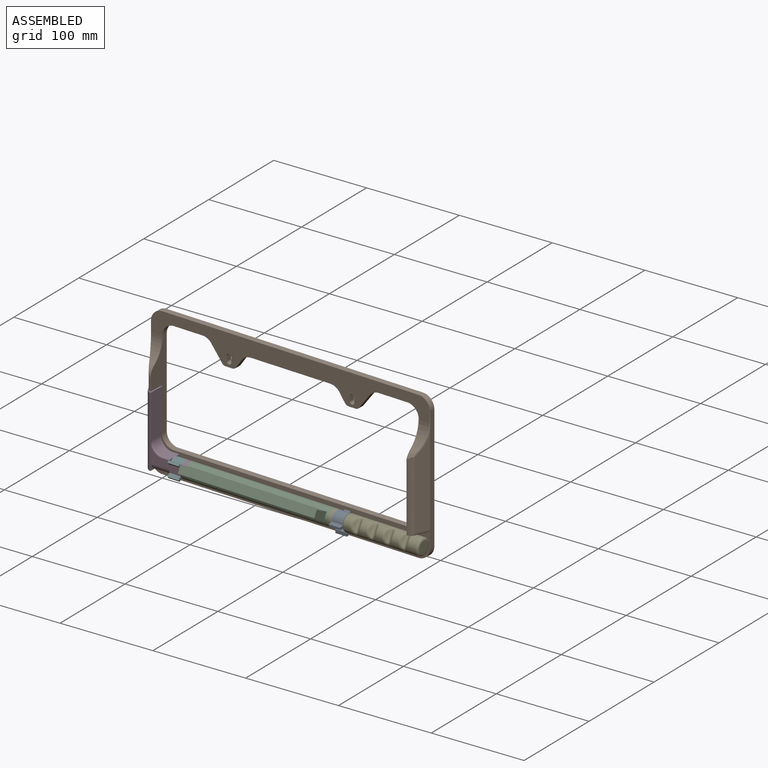
[diagram: assembled view]
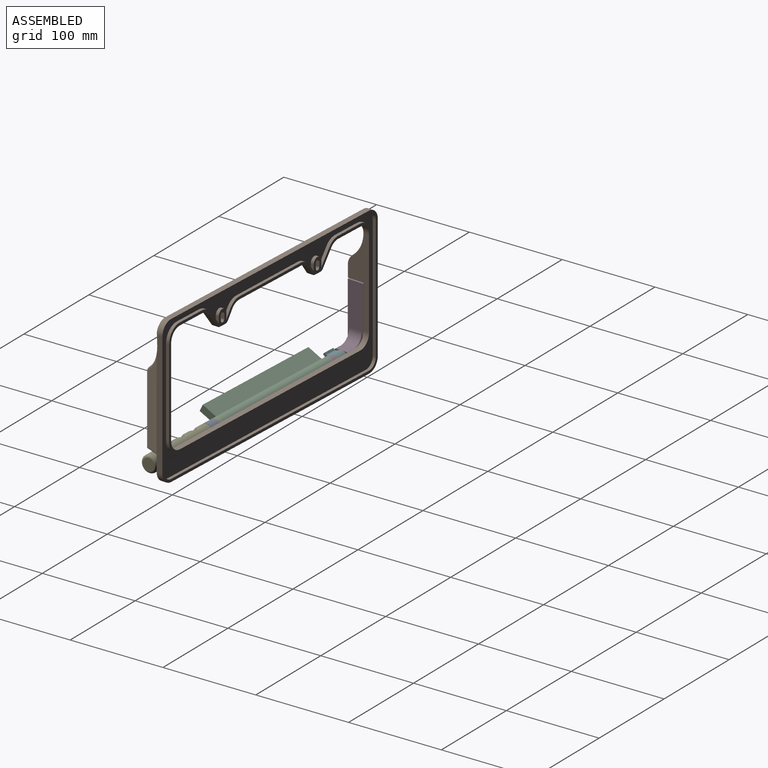
[diagram: assembled view, second angle]
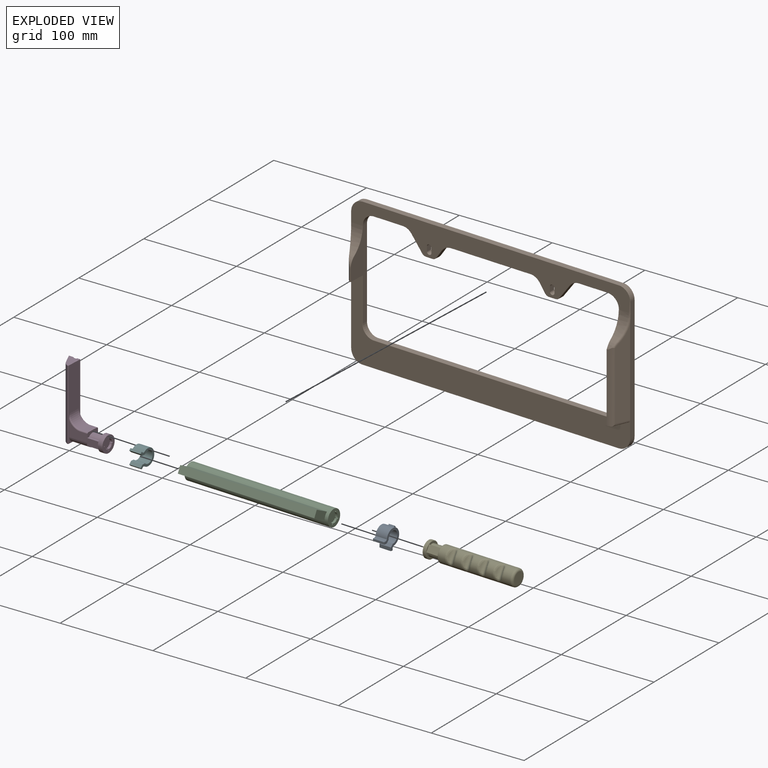
[diagram: exploded view]
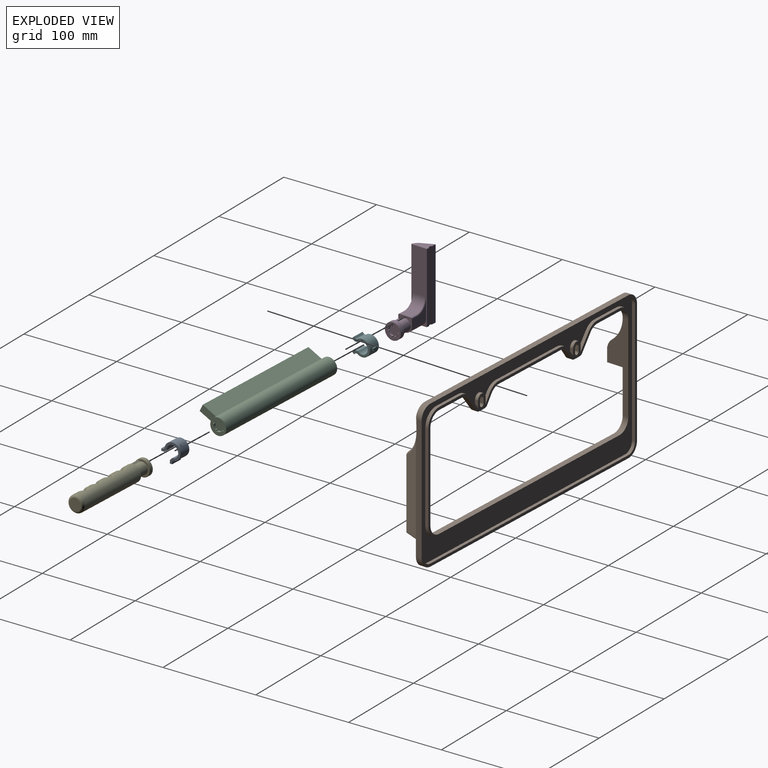
[diagram: exploded view, second angle]
ASSEMBLY  parts=6 mates=8
PART A: 27 faces, bbox 21.1x12.7x17.8 mm
  f0: cylinder r=0.25mm len=12.7mm, axis (0,1,0), area 5mm2, adj f3,f10,f24,f26
  f1: cylinder r=8.89mm len=17.78mm, axis (0,-1,0), area 493mm2, adj f4,f6,f12,f13,f15,f16,f17,f19
  f2: cylinder r=6.35mm len=12.7mm, axis (0,-1,0), area 384.9mm2, adj f4,f6,f8,f9
  f3: plane 12.19x1.44mm, normal (-0.71,0,0.71), area 24.8mm2, adj f0,f24,f25,f26
  f4: plane 19.68x17.78mm, normal (0,1,0), area 117.8mm2, adj f1,f2,f7,f8,f9,f10,f11,f12
  f5: plane 12.19x1.44mm, normal (-0.71,0,-0.71), area 24.8mm2, adj f20,f21,f22,f23
  f6: plane 19.68x17.78mm, normal (0,-1,0), area 117.8mm2, adj f1,f2,f7,f8,f9,f10,f11,f12
  f7: plane 12.7x2.36mm, normal (-0.71,0,0.71), area 42.4mm2, adj f4,f6,f8,f22
  f8: plane 12.7x3.81mm, normal (0,0,1), area 48.4mm2, adj f2,f4,f6,f7
  f9: plane 12.7x3.81mm, normal (0,0,-1), area 48.4mm2, adj f2,f4,f6,f10
  f10: plane 12.7x2.36mm, normal (-0.71,0,-0.71), area 42.4mm2, adj f0,f4,f6,f9
  f11: plane 12.7x1.62mm, normal (0.71,0,-0.71), area 29mm2, adj f4,f6,f12,f21
  f12: plane 12.7x1.77mm, normal (0,0,-1), area 22.4mm2, adj f1,f4,f6,f11
  f13: plane 12.7x1.77mm, normal (0,0,1), area 22.4mm2, adj f1,f4,f6,f14
  f14: plane 12.7x1.62mm, normal (0.71,0,0.71), area 29mm2, adj f4,f6,f13,f25
  f15: plane 6.28x1.36mm, normal (0,0,-1), area 8.6mm2, adj f1,f16,f17,f18
  f16: plane 2.54x1.36mm, normal (0,-1,0), area 3.3mm2, adj f1,f15,f18,f19
  f17: plane 2.54x1.36mm, normal (0,1,0), area 3.3mm2, adj f1,f15,f18,f19
  f18: plane 6.28x2.54mm, normal (1,0,0), area 16mm2, adj f15,f16,f17,f19
  f19: plane 6.28x1.36mm, normal (0,0,1), area 8.6mm2, adj f1,f16,f17,f18
  f20: cylinder r=0.25mm len=1.98mm, axis (-0.71,0,0.71), area 0.9mm2, adj f4,f5,f21,f22
  f21: cylinder r=0.25mm len=12.7mm, axis (0,1,0), area 5mm2, adj f5,f11,f20,f23
  f22: cylinder r=0.25mm len=12.7mm, axis (0,-1,0), area 5mm2, adj f5,f7,f20,f23
  f23: cylinder r=0.25mm len=1.98mm, axis (0.71,0,-0.71), area 0.9mm2, adj f5,f6,f21,f22
  f24: cylinder r=0.25mm len=1.98mm, axis (0.71,0,0.71), area 0.9mm2, adj f0,f3,f4,f25
  f25: cylinder r=0.25mm len=12.7mm, axis (0,-1,0), area 5mm2, adj f3,f14,f24,f26
  f26: cylinder r=0.25mm len=1.98mm, axis (-0.71,0,-0.71), area 0.9mm2, adj f0,f3,f6,f25
PART B: 134 faces, bbox 313.4x25.8x160.3 mm
  f0: cylinder r=0.51mm len=74.27mm, axis (0,0,1), area 15.5mm2, adj f3,f126,f127,f129
  f1: cylinder r=0.51mm len=14.62mm, axis (0,0,1), area 14.1mm2, adj f17,f89,f91,f94,f124
  f2: plane 93.75x14.51mm, normal (0.93,-0.36,0), area 1274.1mm2, adj f9,f130,f131,f132,f133
  f3: plane 106.68x17.53mm, normal (-1,0,0), area 1506.6mm2, adj f0,f4,f125,f127,f128,f129
  f4: plane 311.64x87.36mm, normal (0,-1,0), area 9143.9mm2, adj f3,f8,f9,f13,f14,f15,f91,f117
  f5: plane 291.59x126.49mm, normal (0,1,0), area 2602.4mm2, adj f16,f17,f18,f19,f20,f21,f22,f23
  f6: plane 311.6x34.05mm, normal (0,-1,0), area 5482mm2, adj f10,f11,f12,f13,f40,f41,f42,f43
  f7: plane 311.15x158.75mm, normal (0,1,0), area 2654.7mm2, adj f8,f9,f10,f11,f12,f13,f14,f15
  f8: cylinder r=12.7mm len=12.7mm, axis (0,1,0), area 126.7mm2, adj f4,f7,f9,f15
  f9: plane 134.9x7.9mm, normal (1,0,0), area 837.3mm2, adj f2,f4,f7,f8,f10,f130
  f10: cylinder r=12.7mm len=12.7mm, axis (0,1,0), area 126.2mm2, adj f6,f7,f9,f11,f130
  f11: plane 285.75x6.35mm, normal (0,0,1), area 1814.5mm2, adj f6,f7,f10,f12
  f12: cylinder r=12.7mm len=12.7mm, axis (0,1,0), area 126.7mm2, adj f6,f7,f11,f13
  f13: plane 133.35x6.35mm, normal (-1,0,0), area 846.8mm2, adj f4,f6,f7,f12,f14,f90
  f14: cylinder r=12.7mm len=12.7mm, axis (0,1,0), area 126.7mm2, adj f4,f7,f13,f15
  f15: plane 285.75x6.35mm, normal (0,0,-1), area 1814.5mm2, adj f4,f7,f8,f14
  f16: cylinder r=12.7mm len=12.7mm, axis (0,1,0), area 121.6mm2, adj f5,f17,f39,f97
  f17: plane 95.25x23.37mm, normal (1,0,0), area 1059.1mm2, adj f1,f5,f16,f18,f91,f95,f96,f120
  f18: cylinder r=12.7mm len=12.7mm, axis (0,1,0), area 121.6mm2, adj f5,f17,f19,f119
  f19: plane 260.35x6.1mm, normal (0,0,1), area 1587.1mm2, adj f5,f18,f20,f118
  f20: cylinder r=12.7mm len=12.7mm, axis (0,1,0), area 121.6mm2, adj f5,f19,f21,f117
  f21: plane 95.25x6.1mm, normal (-1,0,0), area 580.6mm2, adj f5,f20,f22,f116
  f22: cylinder r=12.7mm len=12.7mm, axis (0,1,0), area 121.6mm2, adj f5,f21,f23,f115
  f23: plane 31.79x6.1mm, normal (0,0,-1), area 193.8mm2, adj f5,f22,f24,f114
  f24: cylinder r=12.7mm len=10.12mm, axis (0,1,0), area 71.4mm2, adj f5,f23,f25,f113
  f25: plane 15.61x11.83mm, normal (0.8,0,-0.6), area 119.4mm2, adj f5,f24,f26,f112
  f26: cylinder r=5.08mm len=6.1mm, axis (0,1,0), area 28.6mm2, adj f5,f25,f27,f111
  f27: plane 7.53x6.1mm, normal (0,0,-1), area 45.9mm2, adj f5,f26,f28,f110
  f28: cylinder r=5.08mm len=6.1mm, axis (0,1,0), area 29.7mm2, adj f5,f27,f29,f109
  f29: plane 8.71x6.1mm, normal (-0.82,0,-0.57), area 64.8mm2, adj f5,f28,f30,f108
  f30: cylinder r=12.7mm len=10.4mm, axis (0,1,0), area 74.3mm2, adj f5,f29,f31,f107
  f31: plane 88.38x6.1mm, normal (0,0,-1), area 538.7mm2, adj f5,f30,f32,f106
  f32: cylinder r=12.7mm len=10.4mm, axis (0,1,0), area 74.3mm2, adj f5,f31,f33,f105
  f33: plane 8.71x6.1mm, normal (0.82,0,-0.57), area 64.8mm2, adj f5,f32,f34,f104
  f34: cylinder r=5.08mm len=6.1mm, axis (0,1,0), area 29.7mm2, adj f5,f33,f35,f103
  f35: plane 7.53x6.1mm, normal (0,0,-1), area 45.9mm2, adj f5,f34,f36,f102
  f36: cylinder r=5.08mm len=6.1mm, axis (0,1,0), area 28.6mm2, adj f5,f35,f37,f101
  f37: plane 15.61x11.83mm, normal (-0.8,0,-0.6), area 119.4mm2, adj f5,f36,f38,f100
  f38: cylinder r=12.7mm len=10.12mm, axis (0,1,0), area 71.4mm2, adj f5,f37,f39,f99
  f39: plane 31.79x6.1mm, normal (0,0,-1), area 193.8mm2, adj f5,f16,f38,f98
  f40: cylinder r=2.56mm len=6.35mm, axis (0,1,0), area 51mm2, adj f5,f6,f41,f43
  f41: plane 6.35x5.08mm, normal (-1,0,0), area 32.3mm2, adj f5,f6,f40,f42
  f42: cylinder r=2.56mm len=6.35mm, axis (0,1,0), area 51mm2, adj f5,f6,f41,f43
  f43: plane 6.35x5.08mm, normal (1,0,0), area 32.3mm2, adj f5,f6,f40,f42
  f44: cylinder r=2.56mm len=6.35mm, axis (0,1,0), area 51mm2, adj f5,f6,f45,f47
  f45: plane 6.35x5.08mm, normal (-1,0,0), area 32.3mm2, adj f5,f6,f44,f46
  f46: cylinder r=2.56mm len=6.35mm, axis (0,1,0), area 51mm2, adj f5,f6,f45,f47
  f47: plane 6.35x5.08mm, normal (1,0,0), area 32.3mm2, adj f5,f6,f44,f46
  f48: cylinder r=5.48mm len=3.43mm, axis (0,1,0), area 7.5mm2, adj f5,f50,f77,f84
  f49: cylinder r=5.48mm len=3.43mm, axis (0,1,0), area 7.5mm2, adj f5,f50,f70,f88
  f50: plane 305.31x152.91mm, normal (0,1,0), area 11529.8mm2, adj f48,f49,f51,f52,f53,f54,f55,f56
  f51: cylinder r=9.78mm len=9.78mm, axis (0,1,0), area 52.7mm2, adj f7,f50,f52,f58
  f52: plane 133.35x3.43mm, normal (-1,0,0), area 457.3mm2, adj f7,f50,f51,f53
  f53: cylinder r=9.78mm len=9.78mm, axis (0,1,0), area 52.7mm2, adj f7,f50,f52,f54
  f54: plane 285.75x3.43mm, normal (0,0,-1), area 979.8mm2, adj f7,f50,f53,f55
  f55: cylinder r=9.78mm len=9.78mm, axis (0,1,0), area 52.7mm2, adj f7,f50,f54,f56
  f56: plane 133.35x3.43mm, normal (1,0,0), area 457.3mm2, adj f7,f50,f55,f57
  f57: cylinder r=9.78mm len=9.78mm, axis (0,1,0), area 52.7mm2, adj f7,f50,f56,f58
  f58: plane 285.75x3.43mm, normal (0,0,1), area 979.8mm2, adj f7,f50,f51,f57
  f59: cylinder r=15.62mm len=15.62mm, axis (0,1,0), area 84.1mm2, adj f5,f50,f60,f80
  f60: plane 95.25x3.43mm, normal (-1,0,0), area 326.6mm2, adj f5,f50,f59,f61
  f61: cylinder r=15.62mm len=15.62mm, axis (0,1,0), area 84.1mm2, adj f5,f50,f60,f62
  f62: plane 260.35x3.43mm, normal (0,0,-1), area 892.7mm2, adj f5,f50,f61,f63
  f63: cylinder r=15.62mm len=15.62mm, axis (0,1,0), area 84.1mm2, adj f5,f50,f62,f64
  f64: plane 95.25x3.43mm, normal (1,0,0), area 326.6mm2, adj f5,f50,f63,f65
  f65: cylinder r=15.62mm len=15.62mm, axis (0,1,0), area 84.1mm2, adj f5,f50,f64,f66
  f66: plane 31.79x3.43mm, normal (0,0,1), area 109mm2, adj f5,f50,f65,f67
  f67: cylinder r=15.62mm len=12.45mm, axis (0,1,0), area 49.4mm2, adj f5,f50,f66,f68
  f68: plane 15.61x11.83mm, normal (-0.8,0,0.6), area 67.1mm2, adj f5,f50,f67,f69
  f69: cylinder r=2.16mm len=3.43mm, axis (0,1,0), area 2.1mm2, adj f5,f50,f68,f85
  f70: cylinder r=2.16mm len=3.43mm, axis (0,1,0), area 2.4mm2, adj f5,f49,f50,f71
  f71: plane 8.71x6.1mm, normal (0.82,0,0.57), area 36.5mm2, adj f5,f50,f70,f72
  f72: cylinder r=15.62mm len=12.8mm, axis (0,1,0), area 51.4mm2, adj f5,f50,f71,f73
  f73: plane 88.38x3.43mm, normal (0,0,1), area 303mm2, adj f5,f50,f72,f74
  f74: cylinder r=15.62mm len=12.8mm, axis (0,1,0), area 51.4mm2, adj f5,f50,f73,f75
  f75: plane 8.71x6.1mm, normal (-0.82,0,0.57), area 36.5mm2, adj f5,f50,f74,f76
  f76: cylinder r=2.16mm len=3.43mm, axis (0,1,0), area 2.4mm2, adj f5,f50,f75,f81
  f77: cylinder r=2.16mm len=3.43mm, axis (0,1,0), area 2.1mm2, adj f5,f48,f50,f78
  f78: plane 15.61x11.83mm, normal (0.8,0,0.6), area 67.1mm2, adj f5,f50,f77,f79
  f79: cylinder r=15.62mm len=12.45mm, axis (0,1,0), area 49.4mm2, adj f5,f50,f78,f80
  f80: plane 31.79x3.43mm, normal (0,0,1), area 109mm2, adj f5,f50,f59,f79
  f81: cylinder r=5.48mm len=3.43mm, axis (0,1,0), area 7.5mm2, adj f5,f50,f76,f82
  f82: plane 5.08x3.43mm, normal (1,0,0), area 17.4mm2, adj f5,f50,f81,f83
  f83: cylinder r=5.48mm len=10.95mm, axis (0,1,0), area 59mm2, adj f5,f50,f82,f84
  f84: plane 5.08x3.43mm, normal (-1,0,0), area 17.4mm2, adj f5,f48,f50,f83
  f85: cylinder r=5.48mm len=3.43mm, axis (0,1,0), area 7.5mm2, adj f5,f50,f69,f86
  f86: plane 5.08x3.43mm, normal (1,0,0), area 17.4mm2, adj f5,f50,f85,f87
  f87: cylinder r=5.48mm len=10.95mm, axis (0,1,0), area 59mm2, adj f5,f50,f86,f88
  f88: plane 5.08x3.43mm, normal (-1,0,0), area 17.4mm2, adj f5,f49,f50,f87
  f89: cylinder r=12.7mm len=22.32mm, axis (0,0,1), area 107.1mm2, adj f1,f90,f91,f123
  f90: plane 45.46x13.14mm, normal (-0.86,-0.51,0), area 458.1mm2, adj f13,f89,f91,f121,f122
  f91: plane 17.78x12.7mm, normal (0,0,-1), area 129.9mm2, adj f1,f4,f17,f89,f90,f120
  f92: cylinder r=31.37mm len=24.53mm, axis (1,0,0), area 247.7mm2, adj f6,f93,f96,f121
  f93: cylinder r=15.15mm len=11.85mm, axis (1,0,0), area 35.1mm2, adj f92,f94,f95,f122,f123,f124
  f94: bspline ~2.79x0.51mm, area 0.4mm2, adj f1,f93,f95
  f95: bspline ~9.11x5.61mm, area 4.4mm2, adj f17,f93,f94,f96
  f96: bspline ~24.73x12.07mm, area 11.6mm2, adj f17,f92,f95,f97
  f97: bspline ~12.96x12.96mm, area 8.3mm2, adj f6,f16,f96,f98
  f98: extruded ~31.79x0.25mm, area 13.1mm2, adj f6,f39,f97,f99
  f99: revolved ~10.32x5.28mm, area 4.9mm2, adj f6,f38,f98,f100
  f100: extruded ~15.76x12.03mm, area 8.1mm2, adj f6,f37,f99,f101
  f101: revolved ~4.05x2.16mm, area 1.9mm2, adj f6,f36,f100,f102
  f102: extruded ~7.53x0.25mm, area 3.1mm2, adj f6,f35,f101,f103
  f103: revolved ~4.16x2.31mm, area 2mm2, adj f6,f34,f102,f104
  f104: extruded ~8.86x6.31mm, area 4.4mm2, adj f6,f33,f103,f105
  f105: revolved ~10.61x5.67mm, area 5.1mm2, adj f6,f32,f104,f106
  f106: extruded ~88.38x0.25mm, area 36.4mm2, adj f6,f31,f105,f107
  f107: revolved ~10.61x5.67mm, area 5.1mm2, adj f6,f30,f106,f108
  f108: extruded ~8.86x6.31mm, area 4.4mm2, adj f6,f29,f107,f109
  f109: revolved ~4.16x2.31mm, area 2mm2, adj f6,f28,f108,f110
  f110: extruded ~7.53x0.25mm, area 3.1mm2, adj f6,f27,f109,f111
  f111: revolved ~4.05x2.16mm, area 1.9mm2, adj f6,f26,f110,f112
  f112: extruded ~15.76x12.03mm, area 8.1mm2, adj f6,f25,f111,f113
  f113: revolved ~10.32x5.28mm, area 4.9mm2, adj f6,f24,f112,f114
  f114: extruded ~31.79x0.25mm, area 13.1mm2, adj f6,f23,f113,f115
  f115: revolved ~12.95x12.95mm, area 8.3mm2, adj f6,f22,f114,f116
  f116: extruded ~95.25x0.25mm, area 39.3mm2, adj f21,f115,f117,f125
  f117: revolved ~12.95x12.95mm, area 8.3mm2, adj f4,f20,f116,f118,f125
  f118: extruded ~260.35x0.25mm, area 107.3mm2, adj f4,f19,f117,f119
  f119: revolved ~12.95x12.95mm, area 8.3mm2, adj f4,f18,f118,f120
  f120: extruded ~46.99x0.25mm, area 19.4mm2, adj f4,f17,f91,f119
  f121: bspline ~24.73x11.97mm, area 8mm2, adj f6,f90,f92,f122
  f122: bspline ~1.44x1.41mm, area 0.6mm2, adj f90,f93,f121,f123
  f123: bspline ~9.54x4.35mm, area 2.5mm2, adj f89,f93,f122,f124
  f124: bspline ~1.09x0.27mm, area 0.1mm2, adj f1,f93,f123
  f125: plane 97.8x0.25mm, normal (0,1,0), area 24.6mm2, adj f3,f116,f117,f128
  f126: cylinder r=12.7mm len=76.96mm, axis (0,0,1), area 462mm2, adj f0,f127,f129,f131,f132,f133
  f127: plane 17.54x9.97mm, normal (0,0,-1), area 114.3mm2, adj f0,f3,f4,f126,f133
  f128: cylinder r=31.84mm len=24.73mm, axis (-1,0,0), area 262.4mm2, adj f3,f6,f125,f129,f130
  f129: cylinder r=19.52mm len=7.71mm, axis (-1,0,0), area 44.4mm2, adj f0,f3,f126,f128,f131
  f130: bspline ~40.83x13.86mm, area 111.6mm2, adj f2,f6,f9,f10,f128,f131
  f131: bspline ~6.91x5.46mm, area 20.7mm2, adj f2,f126,f129,f130,f132
  f132: extruded ~76.21x1.26mm, area 125.5mm2, adj f2,f126,f131,f133
  f133: extruded ~18.77x9.32mm, area 69.3mm2, adj f2,f4,f126,f127,f132
PART C: 46 faces, bbox 17.8x162.6x33.3 mm
  f0: cylinder r=8.89mm len=160.02mm, axis (0,1,0), area 7695.2mm2, adj f1,f36,f37,f38,f39,f40
  f1: plane 17.78x17.78mm, normal (0,-1,0), area 160.8mm2, adj f0,f2,f3,f4,f5,f6,f7,f8
  f2: cylinder r=5.08mm len=4.59mm, axis (0,-1,0), area 17mm2, adj f1,f3,f17,f18
  f3: plane 2.54x1.32mm, normal (0,0,-1), area 3.4mm2, adj f1,f2,f4,f18
  f4: plane 2.54x1.27mm, normal (-1,0,0), area 3.2mm2, adj f1,f3,f5,f18
  f5: plane 2.54x1.27mm, normal (0,0,1), area 3.2mm2, adj f1,f4,f6,f18
  f6: cylinder r=5.08mm len=4.59mm, axis (0,-1,0), area 17mm2, adj f1,f5,f7,f18
  f7: plane 2.54x1.32mm, normal (-1,0,0), area 3.4mm2, adj f1,f6,f8,f18
  f8: plane 2.54x1.27mm, normal (0,0,1), area 3.2mm2, adj f1,f7,f9,f18
  f9: plane 2.54x1.27mm, normal (1,0,0), area 3.2mm2, adj f1,f8,f10,f18
  f10: cylinder r=5.08mm len=4.59mm, axis (0,-1,0), area 17mm2, adj f1,f9,f11,f18
  f11: plane 2.54x1.32mm, normal (0,0,1), area 3.4mm2, adj f1,f10,f12,f18
  f12: plane 2.54x1.27mm, normal (1,0,0), area 3.2mm2, adj f1,f11,f13,f18
  f13: plane 2.54x1.27mm, normal (0,0,-1), area 3.2mm2, adj f1,f12,f14,f18
  f14: cylinder r=5.08mm len=4.59mm, axis (0,-1,0), area 17mm2, adj f1,f13,f15,f18
  f15: plane 2.54x1.32mm, normal (1,0,0), area 3.4mm2, adj f1,f14,f16,f18
  f16: plane 2.54x1.27mm, normal (0,0,-1), area 3.2mm2, adj f1,f15,f17,f18
  f17: plane 2.54x1.27mm, normal (-1,0,0), area 3.2mm2, adj f1,f2,f16,f18
  f18: plane 12.66x12.66mm, normal (0,-1,0), area 87.5mm2, adj f2,f3,f4,f5,f6,f7,f8,f9
  f19: plane 12.66x12.66mm, normal (0,1,0), area 87.5mm2, adj f20,f21,f22,f23,f24,f25,f26,f27
  f20: cylinder r=5.08mm len=4.59mm, axis (0,-1,0), area 17mm2, adj f19,f21,f35,f36
  f21: plane 2.54x1.27mm, normal (1,0,0), area 3.2mm2, adj f19,f20,f22,f36
  f22: plane 2.54x1.27mm, normal (0,0,-1), area 3.2mm2, adj f19,f21,f23,f36
  f23: plane 2.54x1.32mm, normal (-1,0,0), area 3.4mm2, adj f19,f22,f24,f36
  f24: cylinder r=5.08mm len=4.59mm, axis (0,-1,0), area 17mm2, adj f19,f23,f25,f36
  f25: plane 2.54x1.27mm, normal (0,0,-1), area 3.2mm2, adj f19,f24,f26,f36
  f26: plane 2.54x1.27mm, normal (-1,0,0), area 3.2mm2, adj f19,f25,f27,f36
  f27: plane 2.54x1.32mm, normal (0,0,1), area 3.4mm2, adj f19,f26,f28,f36
  f28: cylinder r=5.08mm len=4.59mm, axis (0,-1,0), area 17mm2, adj f19,f27,f29,f36
  f29: plane 2.54x1.27mm, normal (-1,0,0), area 3.2mm2, adj f19,f28,f30,f36
  f30: plane 2.54x1.27mm, normal (0,0,1), area 3.2mm2, adj f19,f29,f31,f36
  f31: plane 2.54x1.32mm, normal (1,0,0), area 3.4mm2, adj f19,f30,f32,f36
  f32: cylinder r=5.08mm len=4.59mm, axis (0,-1,0), area 17mm2, adj f19,f31,f33,f36
  f33: plane 2.54x1.27mm, normal (0,0,1), area 3.2mm2, adj f19,f32,f34,f36
  f34: plane 2.54x1.27mm, normal (1,0,0), area 3.2mm2, adj f19,f33,f35,f36
  f35: plane 2.54x1.32mm, normal (0,0,-1), area 3.4mm2, adj f19,f20,f34,f36
  f36: plane 17.78x17.78mm, normal (0,1,0), area 160.8mm2, adj f0,f20,f21,f22,f23,f24,f25,f26
  f37: plane 152.4x16.41mm, normal (-1,0,0), area 2501.4mm2, adj f0,f38,f40,f41
  f38: plane 16.41x7.87mm, normal (0,-1,0), area 124.4mm2, adj f0,f37,f39,f41
  f39: plane 152.4x16.41mm, normal (1,0,0), area 2501.4mm2, adj f0,f38,f40,f41
  f40: plane 16.41x7.87mm, normal (0,1,0), area 124.4mm2, adj f0,f37,f39,f41
  f41: plane 152.4x7.87mm, normal (0,0,1), area 1200mm2, adj f37,f38,f39,f40
  f42: plane 8.97x2.03mm, normal (0,1,0), area 12.6mm2, adj f43,f45
  f43: cylinder r=5.97mm len=151.64mm, axis (0,1,0), area 1539.7mm2, adj f42,f44,f45
  f44: plane 8.97x2.03mm, normal (0,-1,0), area 12.6mm2, adj f43,f45
  f45: plane 151.64x8.97mm, normal (0,0,-1), area 1360.7mm2, adj f42,f43,f44
PART D: 110 faces, bbox 77.8x51.1x18.2 mm
  f0: cylinder r=8.89mm len=17.78mm, axis (0,-1,0), area 283.8mm2, adj f9,f19
  f1: cylinder r=6.35mm len=12.7mm, axis (0,-1,0), area 412.5mm2, adj f4,f6,f18,f19,f73,f77
  f2: cylinder r=7.62mm len=20.32mm, axis (0,-1,0), area 446.7mm2, adj f4,f5,f13,f76,f77,f78,f79,f80
  f3: plane 76.2x5.27mm, normal (0,0,-1), area 401.2mm2, adj f8,f14,f15,f87
  f4: plane 14.09x6.25mm, normal (0,1,0), area 21mm2, adj f1,f2,f17,f18,f77
  f5: plane 7.62x1.27mm, normal (0,-1,0), area 3.2mm2, adj f2,f7,f16,f17,f79,f80,f82
  f6: plane 12.61x0.36mm, normal (0,0,-1), area 4.5mm2, adj f1,f7,f19,f73
  f7: plane 12.7x2.54mm, normal (-1,0,0), area 32mm2, adj f5,f6,f16,f19,f73,f79
  f8: plane 76.2x13.63mm, normal (0,-0.89,0.45), area 1085.2mm2, adj f3,f11,f14,f15,f37,f39,f40,f41
  f9: plane 17.78x17.78mm, normal (0,1,0), area 160.9mm2, adj f0,f20,f21,f22,f23,f24,f25,f26
  f10: plane 76.2x3.24mm, normal (0,0,-1), area 247mm2, adj f13,f14,f15,f89
  f11: cylinder r=12.7mm len=76.2mm, axis (1,0,0), area 498.6mm2, adj f8,f12,f14,f15
  f12: cylinder r=0.51mm len=76.2mm, axis (1,0,0), area 75.7mm2, adj f11,f13,f14,f15
  f13: plane 76.2x17.05mm, normal (0,1,0), area 1117.1mm2, adj f2,f10,f12,f14,f15
  f14: plane 17.56x12.7mm, normal (-1,0,0), area 137.3mm2, adj f3,f8,f10,f11,f12,f13,f87,f88
  f15: plane 17.56x12.7mm, normal (1,0,0), area 137.3mm2, adj f3,f8,f10,f11,f12,f13,f87,f88
  f16: plane 12.7x7.62mm, normal (0,0,1), area 96.8mm2, adj f5,f7,f17,f19
  f17: plane 12.7x2.54mm, normal (1,0,0), area 32.3mm2, adj f4,f5,f16,f18,f19
  f18: plane 12.7x0.36mm, normal (0,0,-1), area 4.6mm2, adj f1,f4,f17,f19
  f19: plane 17.78x17.78mm, normal (0,-1,0), area 107mm2, adj f0,f1,f6,f7,f16,f17,f18
  f20: plane 2.54x1.27mm, normal (0,0,1), area 3.2mm2, adj f9,f21,f35,f36
  f21: plane 2.54x1.27mm, normal (-1,0,0), area 3.2mm2, adj f9,f20,f22,f36
  f22: plane 2.54x1.27mm, normal (0,0,-1), area 3.2mm2, adj f9,f21,f23,f36
  f23: cylinder r=5.08mm len=4.41mm, axis (0,1,0), area 17mm2, adj f9,f22,f24,f36
  f24: plane 2.54x1.27mm, normal (-1,0,0), area 3.2mm2, adj f9,f23,f25,f36
  f25: plane 2.54x1.27mm, normal (0,0,-1), area 3.2mm2, adj f9,f24,f26,f36
  f26: plane 2.54x1.27mm, normal (1,0,0), area 3.2mm2, adj f9,f25,f27,f36
  f27: cylinder r=5.08mm len=4.41mm, axis (0,1,0), area 17mm2, adj f9,f26,f28,f36
  f28: plane 2.54x1.27mm, normal (0,0,-1), area 3.2mm2, adj f9,f27,f29,f36
  f29: plane 2.54x1.27mm, normal (1,0,0), area 3.2mm2, adj f9,f28,f30,f36
  f30: plane 2.54x1.27mm, normal (0,0,1), area 3.2mm2, adj f9,f29,f31,f36
  f31: cylinder r=5.08mm len=4.41mm, axis (0,1,0), area 17mm2, adj f9,f30,f32,f36
  f32: plane 2.54x1.27mm, normal (1,0,0), area 3.2mm2, adj f9,f31,f33,f36
  f33: plane 2.54x1.27mm, normal (0,0,1), area 3.2mm2, adj f9,f32,f34,f36
  f34: plane 2.54x1.27mm, normal (-1,0,0), area 3.2mm2, adj f9,f33,f35,f36
  f35: cylinder r=5.08mm len=4.41mm, axis (0,1,0), area 17mm2, adj f9,f20,f34,f36
  f36: plane 12.62x12.62mm, normal (0,1,0), area 87.4mm2, adj f20,f21,f22,f23,f24,f25,f26,f27
  f37: plane 7.11x3.67mm, normal (0.98,-0.18,0), area 13.6mm2, adj f8,f38,f40,f41
  f38: plane 7.11x0.69mm, normal (0,-1,0), area 4.9mm2, adj f37,f39,f40,f41
  f39: plane 7.11x3.67mm, normal (-0.98,-0.18,0), area 13.6mm2, adj f8,f38,f40,f41
  f40: plane 3.66x2.01mm, normal (0,0,1), area 4.9mm2, adj f8,f37,f38,f39
  f41: plane 0.73x0.11mm, normal (0,0,-1), area 0.1mm2, adj f8,f37,f38,f39
  f42: plane 7.11x3.67mm, normal (0.98,-0.18,0), area 13.6mm2, adj f8,f43,f45,f46
  f43: plane 7.11x0.69mm, normal (0,-1,0), area 4.9mm2, adj f42,f44,f45,f46
  f44: plane 7.11x3.67mm, normal (-0.98,-0.18,0), area 13.6mm2, adj f8,f43,f45,f46
  f45: plane 3.66x2.01mm, normal (0,0,1), area 4.9mm2, adj f8,f42,f43,f44
  f46: plane 0.73x0.11mm, normal (0,0,-1), area 0.1mm2, adj f8,f42,f43,f44
  f47: plane 7.11x3.67mm, normal (0.98,-0.18,0), area 13.6mm2, adj f8,f48,f50,f51
  f48: plane 7.11x0.69mm, normal (0,-1,0), area 4.9mm2, adj f47,f49,f50,f51
  f49: plane 7.11x3.67mm, normal (-0.98,-0.18,0), area 13.6mm2, adj f8,f48,f50,f51
  f50: plane 3.66x2.01mm, normal (0,0,1), area 4.9mm2, adj f8,f47,f48,f49
  f51: plane 0.73x0.11mm, normal (0,0,-1), area 0.1mm2, adj f8,f47,f48,f49
  f52: plane 7.11x3.67mm, normal (0.98,-0.18,0), area 13.6mm2, adj f8,f53,f55,f56
  f53: plane 7.11x0.69mm, normal (0,-1,0), area 4.9mm2, adj f52,f54,f55,f56
  f54: plane 7.11x3.67mm, normal (-0.98,-0.18,0), area 13.6mm2, adj f8,f53,f55,f56
  f55: plane 3.66x2.01mm, normal (0,0,1), area 4.9mm2, adj f8,f52,f53,f54
  f56: plane 0.73x0.11mm, normal (0,0,-1), area 0.1mm2, adj f8,f52,f53,f54
  f57: plane 7.11x3.67mm, normal (0.98,-0.18,0), area 13.6mm2, adj f8,f58,f60,f61
  f58: plane 7.11x0.69mm, normal (0,-1,0), area 4.9mm2, adj f57,f59,f60,f61
  f59: plane 7.11x3.67mm, normal (-0.98,-0.18,0), area 13.6mm2, adj f8,f58,f60,f61
  f60: plane 3.66x2.01mm, normal (0,0,1), area 4.9mm2, adj f8,f57,f58,f59
  f61: plane 0.73x0.11mm, normal (0,0,-1), area 0.1mm2, adj f8,f57,f58,f59
  f62: plane 7.11x3.67mm, normal (0.98,-0.18,0), area 13.6mm2, adj f8,f63,f65,f66
  f63: plane 7.11x0.69mm, normal (0,-1,0), area 4.9mm2, adj f62,f64,f65,f66
  f64: plane 7.11x3.67mm, normal (-0.98,-0.18,0), area 13.6mm2, adj f8,f63,f65,f66
  f65: plane 3.66x2.01mm, normal (0,0,1), area 4.9mm2, adj f8,f62,f63,f64
  f66: plane 0.73x0.11mm, normal (0,0,-1), area 0.1mm2, adj f8,f62,f63,f64
  f67: plane 7.11x3.67mm, normal (0.98,-0.18,0), area 13.6mm2, adj f8,f68,f70,f71
  f68: plane 7.11x0.69mm, normal (0,-1,0), area 4.9mm2, adj f67,f69,f70,f71
  f69: plane 7.11x3.67mm, normal (-0.98,-0.18,0), area 13.6mm2, adj f8,f68,f70,f71
  f70: plane 3.66x2.01mm, normal (0,0,1), area 4.9mm2, adj f8,f67,f68,f69
  f71: plane 0.73x0.11mm, normal (0,0,-1), area 0.1mm2, adj f8,f67,f68,f69
  f72: plane 20.4x17.04mm, normal (0,0,-1), area 210.5mm2, adj f73,f76,f77,f78,f85,f86
  f73: plane 15.24x10.16mm, normal (0,1,0), area 65.5mm2, adj f1,f6,f7,f72,f74,f77,f79,f84
  f74: plane 12.71x7.71mm, normal (-1,0,0), area 97.8mm2, adj f73,f75,f84,f86
  f75: cylinder r=12.7mm len=12.71mm, axis (0,0,1), area 253.4mm2, adj f74,f78,f83,f85
  f76: plane 1.37x0.12mm, normal (0,-1,0), area 0.1mm2, adj f2,f72,f77
  f77: plane 20.4x1.44mm, normal (1,0,0), area 2.9mm2, adj f1,f2,f4,f72,f73,f76
  f78: plane 21.81x15.56mm, normal (0,-1,0), area 230.5mm2, adj f2,f72,f75,f79,f83,f85
  f79: plane 20.4x15.65mm, normal (0,0,1), area 174.1mm2, adj f2,f5,f7,f73,f78,f83,f84
  f80: plane 20.3x1.36mm, normal (0,0,1), area 19.8mm2, adj f2,f5,f81,f82
  f81: plane 1.36x0.12mm, normal (0,-1,0), area 0.1mm2, adj f2,f80,f82
  f82: plane 20.3x0.12mm, normal (1,0,0), area 2.3mm2, adj f2,f5,f80,f81
  f83: torus R=13.97mm, axis (0,0,-1), area 35.5mm2, adj f75,f78,f79,f84
  f84: cylinder r=1.27mm len=7.7mm, axis (0,1,0), area 15.4mm2, adj f73,f74,f79,f83
  f85: torus R=13.97mm, axis (0,0,-1), area 35.5mm2, adj f72,f75,f78,f86
  f86: cylinder r=1.27mm len=7.7mm, axis (0,-1,0), area 15.4mm2, adj f72,f73,f74,f85
  f87: plane 76.2x1.1mm, normal (0,0.87,-0.5), area 96.8mm2, adj f3,f14,f15,f88
  f88: plane 76.2x2.92mm, normal (0,0,-1), area 222.8mm2, adj f14,f15,f87,f89
  f89: plane 76.2x1.1mm, normal (0,-0.87,-0.5), area 96.8mm2, adj f10,f14,f15,f88
  f90: plane 70.36x4.49mm, normal (0,0,1), area 316mm2, adj f91,f92,f93,f94
  f91: plane 70.36x8.97mm, normal (0,0.89,-0.45), area 705.9mm2, adj f90,f92,f93,f94
  f92: plane 70.36x8.97mm, normal (0,-1,0), area 631.2mm2, adj f90,f91,f93,f94
  f93: plane 8.97x4.49mm, normal (1,0,0), area 20.1mm2, adj f90,f91,f92
  f94: plane 8.97x4.49mm, normal (-1,0,0), area 20.1mm2, adj f90,f91,f92
  f95: plane 14.57x10.18mm, normal (-1,0,0), area 147.9mm2, adj f96,f99,f100,f101
  f96: plane 10.16x3.05mm, normal (0,-1,0), area 31mm2, adj f95,f97,f100,f101
  f97: plane 10.17x8.6mm, normal (1,0,0), area 87.2mm2, adj f96,f98,f100,f101
  f98: cylinder r=13.68mm len=10.17mm, axis (0,0,-1), area 68.2mm2, adj f97,f99,f100,f101
  f99: plane 10.16x5.97mm, normal (0,1,0), area 60.6mm2, adj f95,f98,f100,f101
  f100: plane 14.56x5.97mm, normal (0,0,-1), area 51.3mm2, adj f95,f96,f97,f98,f99
  f101: plane 14.56x5.97mm, normal (0,0,1), area 51.3mm2, adj f95,f96,f97,f98,f99
  f102: cylinder r=4.89mm len=12.7mm, axis (0,-1,0), area 388.6mm2, adj f104,f106,f107,f108
  f103: cylinder r=6.16mm len=20.32mm, axis (0,-1,0), area 337.2mm2, adj f104,f105,f107,f109
  f104: plane 12.01x4.79mm, normal (0,-1,0), area 18.5mm2, adj f102,f103,f107
  f105: plane 12.32x12.32mm, normal (0,1,0), area 119.2mm2, adj f103
  f106: plane 9.78x9.78mm, normal (0,-1,0), area 75.1mm2, adj f102
  f107: plane 20.41x12.01mm, normal (1,0,0), area 244.7mm2, adj f102,f103,f104,f108,f109
  f108: plane 9.78x6.26mm, normal (0,1,0), area 50.8mm2, adj f102,f107
  f109: plane 12.32x7.54mm, normal (0,-1,0), area 76.4mm2, adj f103,f107
PART E: 42 faces, bbox 19.2x102.9x19.2 mm
  f0: plane 12.7x12.7mm, normal (0,1,0), area 86.3mm2, adj f6,f7,f8,f9,f10,f11,f12,f13
  f1: plane 12.7x12.7mm, normal (0,-1,0), area 126.7mm2, adj f22
  f2: extruded ~12.03x7.24mm, area 90.8mm2, adj f23,f24
  f3: extruded ~12.03x7.24mm, area 90.8mm2, adj f25,f26
  f4: extruded ~12.03x7.24mm, area 90.8mm2, adj f27,f28
  f5: extruded ~12.03x7.24mm, area 90.8mm2, adj f29,f30
  f6: plane 2.54x1.3mm, normal (0,0,1), area 3.3mm2, adj f0,f7,f21,f31
  f7: plane 2.54x1.02mm, normal (-1,0,0), area 2.6mm2, adj f0,f6,f8,f31
  f8: plane 2.54x1.3mm, normal (0,0,-1), area 3.3mm2, adj f0,f7,f9,f31
  f9: cylinder r=5.08mm len=4.55mm, axis (0,-1,0), area 17.7mm2, adj f0,f8,f10,f31
  f10: plane 2.54x1.3mm, normal (-1,0,0), area 3.3mm2, adj f0,f9,f11,f31
  f11: plane 2.54x1.02mm, normal (0,0,-1), area 2.6mm2, adj f0,f10,f12,f31
  f12: plane 2.54x1.3mm, normal (1,0,0), area 3.3mm2, adj f0,f11,f13,f31
  f13: cylinder r=5.08mm len=4.55mm, axis (0,-1,0), area 17.7mm2, adj f0,f12,f14,f31
  f14: plane 2.54x1.3mm, normal (0,0,-1), area 3.3mm2, adj f0,f13,f15,f31
  f15: plane 2.54x1.02mm, normal (1,0,0), area 2.6mm2, adj f0,f14,f16,f31
  f16: plane 2.54x1.3mm, normal (0,0,1), area 3.3mm2, adj f0,f15,f17,f31
  f17: cylinder r=5.08mm len=4.55mm, axis (0,-1,0), area 17.7mm2, adj f0,f16,f18,f31
  f18: plane 2.54x1.3mm, normal (1,0,0), area 3.3mm2, adj f0,f17,f19,f31
  f19: plane 2.54x1.02mm, normal (0,0,1), area 2.6mm2, adj f0,f18,f20,f31
  f20: plane 2.54x1.3mm, normal (-1,0,0), area 3.3mm2, adj f0,f19,f21,f31
  f21: cylinder r=5.08mm len=4.55mm, axis (0,-1,0), area 17.7mm2, adj f0,f6,f20,f31
  f22: torus R=6.35mm, axis (0,-1,0), area 199.7mm2, adj f1,f32
  f23: bspline ~11.6x9.26mm, area 61.7mm2, adj f2,f24,f32
  f24: bspline ~11.6x9.28mm, area 61.7mm2, adj f2,f23,f32
  f25: bspline ~11.6x9.26mm, area 61.7mm2, adj f3,f26,f32
  f26: bspline ~11.6x9.28mm, area 61.7mm2, adj f3,f25,f32
  f27: bspline ~11.6x9.26mm, area 61.7mm2, adj f4,f28,f32
  f28: bspline ~11.6x9.28mm, area 61.7mm2, adj f4,f27,f32
  f29: bspline ~11.6x9.26mm, area 61.7mm2, adj f5,f30,f32
  f30: bspline ~11.6x9.28mm, area 61.7mm2, adj f5,f29,f32
  f31: plane 17.78x17.78mm, normal (0,1,0), area 162mm2, adj f6,f7,f8,f9,f10,f11,f12,f13
  f32: cylinder r=8.89mm len=80.77mm, axis (0,1,0), area 3703.3mm2, adj f22,f23,f24,f25,f26,f27,f28,f29
  f33: cylinder r=8.89mm len=17.78mm, axis (0,-1,0), area 184.4mm2, adj f31,f35
  f34: torus R=8.38mm, axis (0,-1,0), area 43.6mm2, adj f32,f37
  f35: torus R=8.38mm, axis (0,1,0), area 43.6mm2, adj f33,f39
  f36: plane 12.7x2.32mm, normal (-1,0,0), area 29.4mm2, adj f37,f38,f39,f40
  f37: plane 16.76x16.76mm, normal (0,1,0), area 83mm2, adj f34,f36,f38,f40,f41
  f38: cylinder r=6.35mm len=12.7mm, axis (0,-1,0), area 402.9mm2, adj f36,f37,f39,f41
  f39: plane 16.76x16.76mm, normal (0,-1,0), area 83mm2, adj f35,f36,f38,f40,f41
  f40: plane 12.7x7.62mm, normal (0,0,1), area 96.8mm2, adj f36,f37,f39,f41
  f41: plane 12.7x2.32mm, normal (1,0,0), area 29.4mm2, adj f37,f38,f39,f40
PART F: same geometry as A
PLACE A rot(axis=(0.35,-0.37,0.86),95.8deg) t=(-296.54,-520.89,-95)mm
PLACE B rot(axis=(0,0,-1),2.7deg) t=(-372.79,-178.56,-106.5)mm fixed
PLACE C rot(axis=(0.46,-0.48,0.74),104.2deg) t=(-572.22,-526.64,-85.67)mm
PLACE D rot(axis=(0.59,0.56,-0.59),121.6deg) t=(-495.3,-502.83,-96.37)mm
PLACE E rot(axis=(0.43,-0.45,0.78),101.5deg) t=(-283.86,-521.5,-95)mm
PLACE F rot(axis=(0,0,1),87.3deg) t=(-477.95,-512.2,-95)mm
MATE planar C.f0 <-> D.f9  axis (-1,0.05,0) through (-460.19,-513.05,-95)mm
MATE revolute A.f1 <-> E.f9  axis (1,-0.05,0) through (-290.2,-521.19,-95)mm
MATE cylindrical C.f0 <-> D.f0  axis (-1,0.05,0) through (-380.27,-516.88,-95)mm
MATE revolute F.f1 <-> D.f0  axis (1,-0.05,0) through (-471.6,-512.5,-95)mm
MATE fastened B.f4 <-> D.f3  axis (-0.05,-1,0) through (-507.89,-502.24,-64.52)mm
MATE cylindrical C.f0 <-> E.f9  axis (-1,0.05,0) through (-380.27,-516.88,-95)mm
MATE cylindrical C.f0 <-> E.f9  axis (-1,0.05,0) through (-380.27,-516.88,-95)mm
MATE planar C.f0 <-> E.f31  axis (-1,0.05,0) through (-300.35,-520.71,-95)mm
